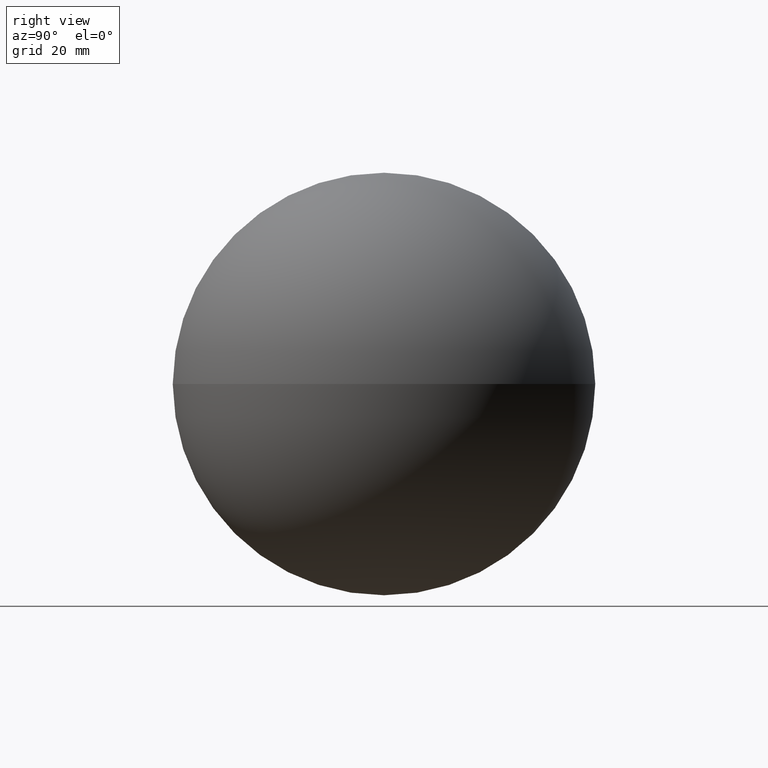
[diagram: clean part render]
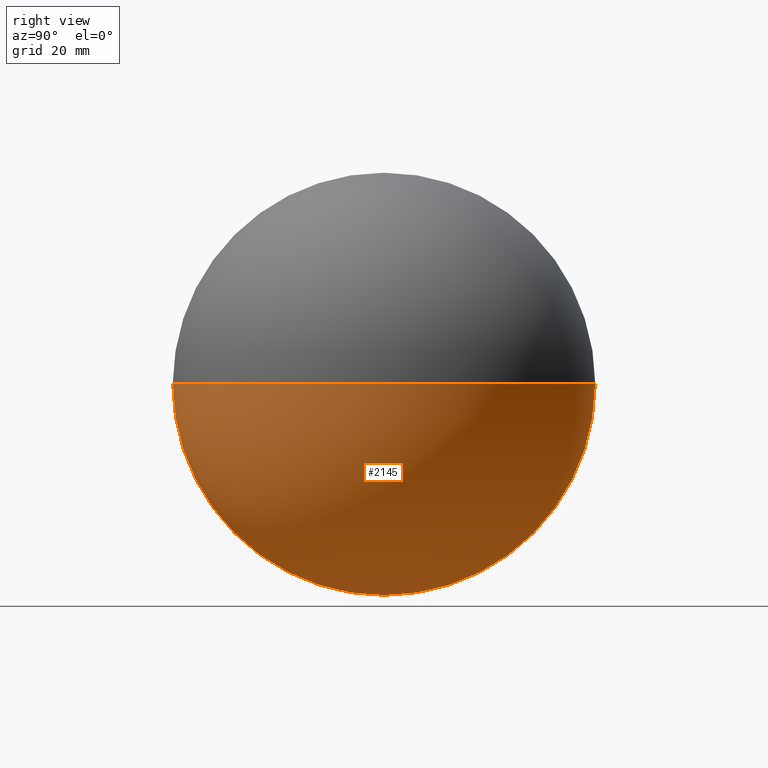
[diagram: same view with one face highlighted and labeled with its STEP entity id]
A machine part, right view. The second image highlights one B-rep face of the part: STEP entity #2145.
In plain terms, the highlighted spherical surface has radius 45 mm.
Its self-contained STEP definition (entity closure, byte-faithful):
#644 = DIRECTION ( 'NONE',  ( -1.000000000000000000, 0.0000000000000000000, 0.0000000000000000000 ) ) ;
#1078 = DIRECTION ( 'NONE',  ( -1.224646799147353200E-016, 1.499759782661928200E-032, 1.000000000000000000 ) ) ;
#1117 = AXIS2_PLACEMENT_3D ( 'NONE', #3375, #1078, #1909 ) ;
#1210 = VERTEX_POINT ( 'NONE', #6724 ) ;
#1566 = CARTESIAN_POINT ( 'NONE',  ( 2.755455298081803900E-015, 45.00000000000000000, 0.0000000000000000000 ) ) ;
#1909 = DIRECTION ( 'NONE',  ( 1.000000000000000000, 0.0000000000000000000, 1.224646799147353200E-016 ) ) ;
#2078 = EDGE_CURVE ( 'NONE', #1210, #8767, #3544, .T. ) ;
#2116 = DIRECTION ( 'NONE',  ( -0.0000000000000000000, 0.0000000000000000000, -1.000000000000000000 ) ) ;
#2145 = ADVANCED_FACE ( 'NONE', ( #3901 ), #6770, .T. ) ;
#2501 = EDGE_CURVE ( 'NONE', #1210, #8767, #9428, .T. ) ;
#3375 = CARTESIAN_POINT ( 'NONE',  ( 0.0000000000000000000, 0.0000000000000000000, 0.0000000000000000000 ) ) ;
#3544 = CIRCLE ( 'NONE', #9212, 45.00000000000000000 ) ;
#3901 = FACE_OUTER_BOUND ( 'NONE', #9350, .T. ) ;
#4170 = ORIENTED_EDGE ( 'NONE', *, *, #2078, .T. ) ;
#4517 = DIRECTION ( 'NONE',  ( 0.0000000000000000000, 0.0000000000000000000, 1.000000000000000000 ) ) ;
#5521 = AXIS2_PLACEMENT_3D ( 'NONE', #8203, #4517, #8172 ) ;
#6653 = ORIENTED_EDGE ( 'NONE', *, *, #2501, .F. ) ;
#6724 = CARTESIAN_POINT ( 'NONE',  ( -8.266365894244893900E-015, -45.00000000000000000, 0.0000000000000000000 ) ) ;
#6770 = SPHERICAL_SURFACE ( 'NONE', #5521, 45.00000000000000000 ) ;
#8033 = CARTESIAN_POINT ( 'NONE',  ( 0.0000000000000000000, 0.0000000000000000000, 0.0000000000000000000 ) ) ;
#8172 = DIRECTION ( 'NONE',  ( -1.000000000000000000, 1.224646799147410900E-016, 0.0000000000000000000 ) ) ;
#8203 = CARTESIAN_POINT ( 'NONE',  ( 0.0000000000000000000, 0.0000000000000000000, 0.0000000000000000000 ) ) ;
#8767 = VERTEX_POINT ( 'NONE', #1566 ) ;
#9212 = AXIS2_PLACEMENT_3D ( 'NONE', #8033, #2116, #644 ) ;
#9350 = EDGE_LOOP ( 'NONE', ( #6653, #4170 ) ) ;
#9428 = CIRCLE ( 'NONE', #1117, 45.00000000000000000 ) ;